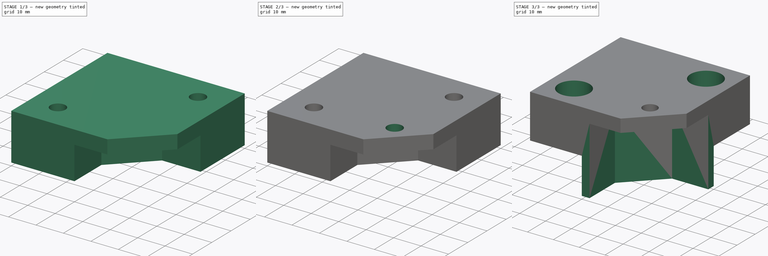
[diagram: build sequence overview — one tinted view per stage of 3, left to right]
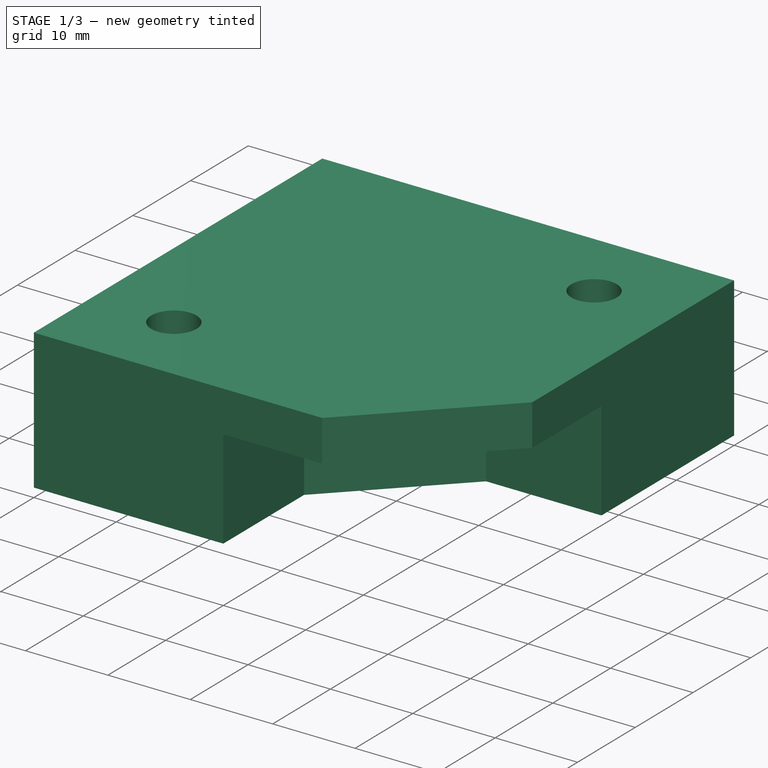
[diagram: stage 1 of 3 — iso view after this stage's code; geometry added in this stage tinted green]
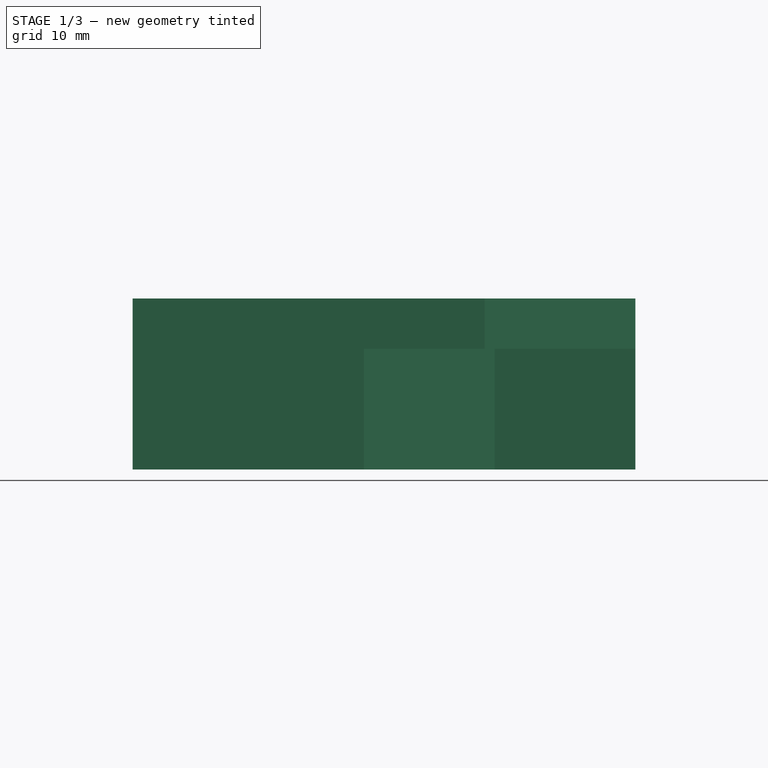
[diagram: stage 1 of 3 — front view after this stage's code; geometry added in this stage tinted green]
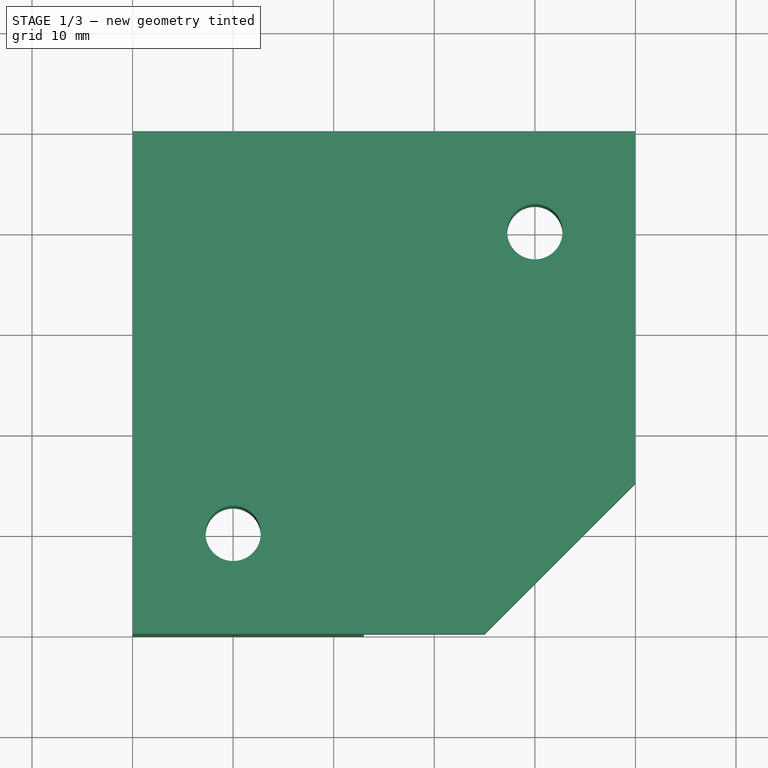
[diagram: stage 1 of 3 — top view after this stage's code; geometry added in this stage tinted green]
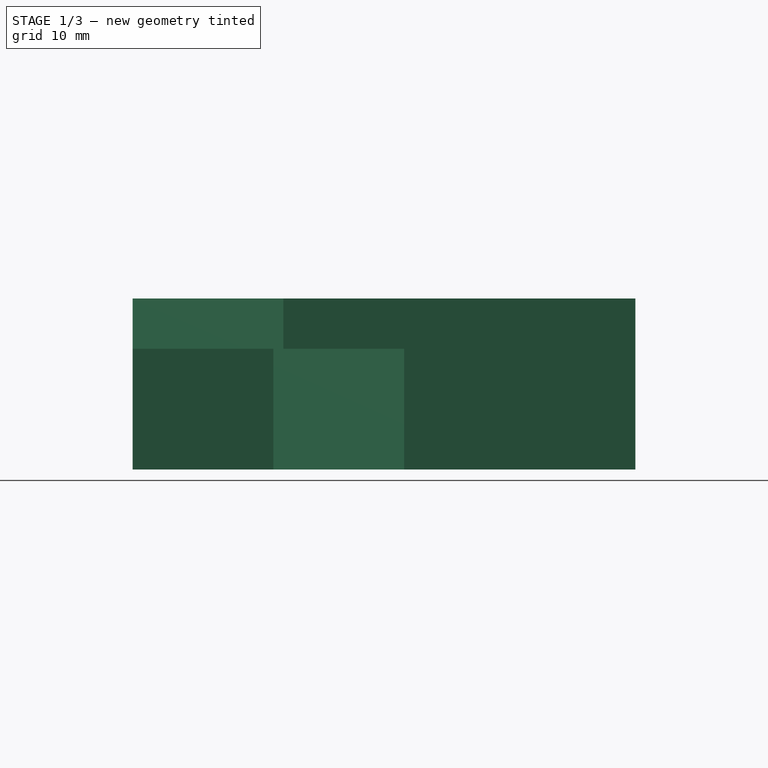
[diagram: stage 1 of 3 — right view after this stage's code; geometry added in this stage tinted green]
FCSTD DOCUMENT  (FreeCAD 0.20R27078 (Git))
Label: corner idler bracket top
License: All rights reserved
LicenseURL: http://en.wikipedia.org/wiki/All_rights_reserved
objects: Sketcher::SketchObject×6, PartDesign::Pad×3, PartDesign::Pocket×3, PartDesign::Body×1
note: 19 computed .brp shape members not serialized (recipe doc carries the construction recipe); baked Part::Feature solids carry a one-line shape summary decoded from their .brp

FEATURE [Sketcher::SketchObject] Sketch001
  FullyConstrained = false
  MapMode = 5
  Placement = pos=(0,0,6) rot=(0,0,1;0rad)
  sketch-geometry (13):
    g0: LineSegment StartX=15 StartY=-30 StartZ=0 EndX=-20 EndY=-30 EndZ=0
    g1: LineSegment StartX=-20 StartY=-30 StartZ=0 EndX=-20 EndY=20 EndZ=0
    g2: LineSegment StartX=-20 StartY=20 StartZ=0 EndX=30 EndY=20 EndZ=0
    g3: LineSegment StartX=30 StartY=20 StartZ=0 EndX=30 EndY=-15 EndZ=0
    g4: LineSegment StartX=15 StartY=-30 StartZ=0 EndX=30 EndY=-15 EndZ=0
    g5: Circle CenterX=-10 CenterY=-20 CenterZ=0 NormalX=0 NormalY=0 NormalZ=1 AngleXU=0 Radius=2.75
    g6: Circle CenterX=20 CenterY=10 CenterZ=0 NormalX=0 NormalY=0 NormalZ=1 AngleXU=0 Radius=2.75
    g7: LineSegment StartX=-10 StartY=-20 StartZ=0 EndX=0 EndY=-20 EndZ=0
    g8: LineSegment StartX=-10 StartY=-20 StartZ=0 EndX=-10 EndY=-30 EndZ=0
    g9: LineSegment StartX=20 StartY=10 StartZ=0 EndX=20 EndY=0 EndZ=0
    g10: LineSegment StartX=20 StartY=10 StartZ=0 EndX=30 EndY=10 EndZ=0
    g11: LineSegment StartX=-10 StartY=-20 StartZ=0 EndX=-20 EndY=-20 EndZ=0
    g12: LineSegment StartX=20 StartY=10 StartZ=0 EndX=20 EndY=20 EndZ=0
  constraints (38):
    c: Horizontal(g0)
    c: Coincident(g1,g0)
    c: Vertical(g1)
    c: Horizontal(g2)
    c: Coincident(g3,g2)
    c: Vertical(g3)
    c: Coincident(g4,g0)
    c: Coincident(g4,g3)
    c: Diameter(g6) = 5.5
    c: DistanceX(g-1,g0) = 15
    c: DistanceY(g0,g-1) = 30
    c: Equal(g3,g0)
    c: Coincident(g7,g5)
    c: PointOnObject(g7,g-2)
    c: Horizontal(g7)
    c: DistanceX(g7,g7) = 10
    c: Coincident(g8,g5)
    c: PointOnObject(g8,g0)
    c: Vertical(g8)
    c: Equal(g8,g7)
    c: Coincident(g9,g6)
    c: PointOnObject(g9,g-1)
    c: Vertical(g9)
    c: Equal(g7,g9)
    c: Coincident(g10,g6)
    c: PointOnObject(g10,g3)
    c: Horizontal(g10)
    c: Equal(g7,g10)
    c: Coincident(g11,g5)
    c: PointOnObject(g11,g1)
    c: Horizontal(g11)
    c: Equal(g11,g7)
    c: Coincident(g12,g6)
    c: PointOnObject(g12,g2)
    c: Vertical(g12)
    c: Equal(g12,g10)
    c: Coincident(g1,g2)
    c: Equal(g1,g2)
FEATURE [PartDesign::Pad] Pad001
  Direction = (0,0,1)
  Length = 17
  Length2 = 100
  Placement = pos=(0,0,6) rot=(0,0,1;0rad)
  Profile = -> Sketch001
  ReferenceAxis = -> Sketch001 [N_Axis]
  Refine = true
  Type = 0
FEATURE [Sketcher::SketchObject] Sketch
  ExternalGeometry = -> [Pad001]
  FullyConstrained = true
  MapMode = 5
  Placement = pos=(0,0,6) rot=(1,0,0;3.14159rad)
  Support = -> [Pad001]
  sketch-geometry (6):
    g0: LineSegment StartX=15 StartY=30 StartZ=0 EndX=3 EndY=30 EndZ=0
    g1: LineSegment StartX=15 StartY=30 StartZ=0 EndX=30 EndY=15 EndZ=0
    g2: LineSegment StartX=30 StartY=15 StartZ=0 EndX=30 EndY=3 EndZ=0
    g3: LineSegment StartX=3 StartY=16 StartZ=0 EndX=16 EndY=3 EndZ=0
    g4: LineSegment StartX=3 StartY=16 StartZ=0 EndX=3 EndY=30 EndZ=0
    g5: LineSegment StartX=16 StartY=3 StartZ=0 EndX=30 EndY=3 EndZ=0
  constraints (16):
    c: Coincident(g0,g-3)
    c: Horizontal(g0)
    c: Coincident(g1,g0)
    c: Coincident(g1,g-3)
    c: Coincident(g2,g1)
    c: Vertical(g2)
    c: Parallel(g3,g1)
    c: Coincident(g4,g3)
    c: Coincident(g4,g0)
    c: Coincident(g5,g3)
    c: Coincident(g5,g2)
    c: DistanceX(g5,g5) = 14
    c: Vertical(g4)
    c: Equal(g5,g4)
    c: Horizontal(g5)
    c: DistanceY(g-1,g2) = 3
FEATURE [PartDesign::Pocket] Pocket
  BaseFeature = -> Pad001
  Direction = (0,0,1)
  Length = 12
  Length2 = 100
  Placement = pos=(0,0,6) rot=(0,0,1;0rad)
  Profile = -> Sketch
  ReferenceAxis = -> Sketch [N_Axis]
  Refine = true
  Type = 0
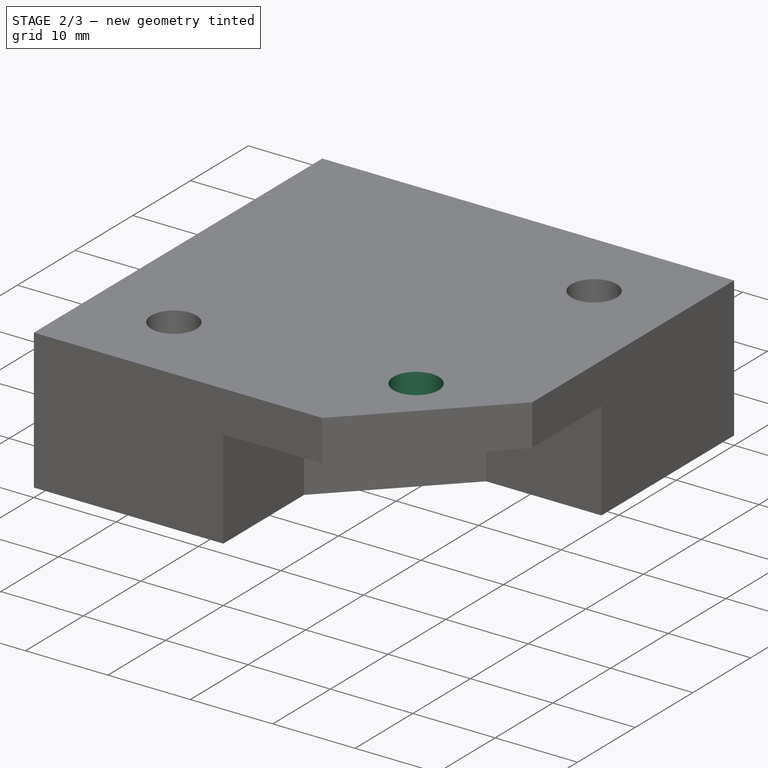
[diagram: stage 2 of 3 — iso view after this stage's code; geometry added in this stage tinted green]
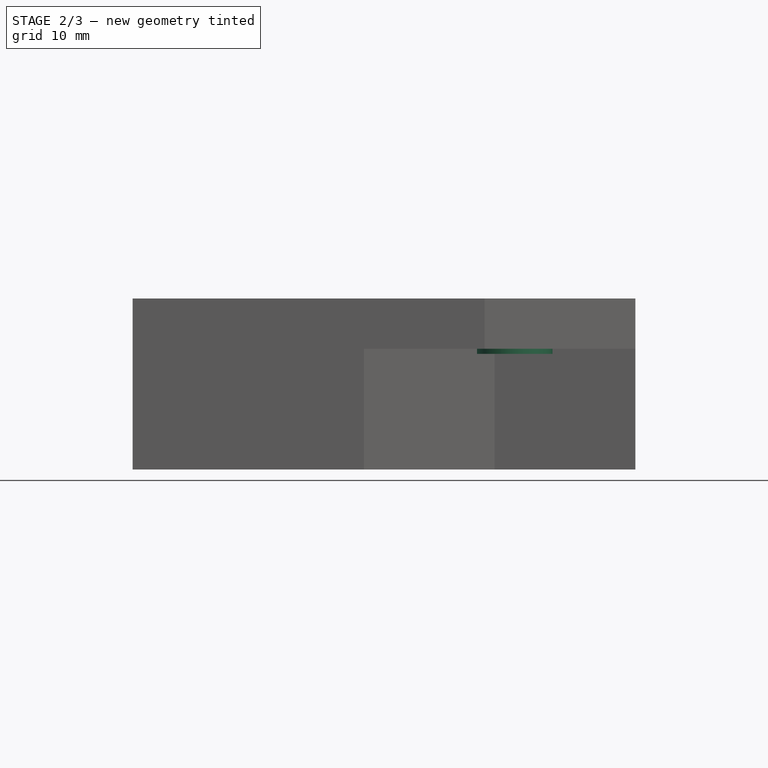
[diagram: stage 2 of 3 — front view after this stage's code; geometry added in this stage tinted green]
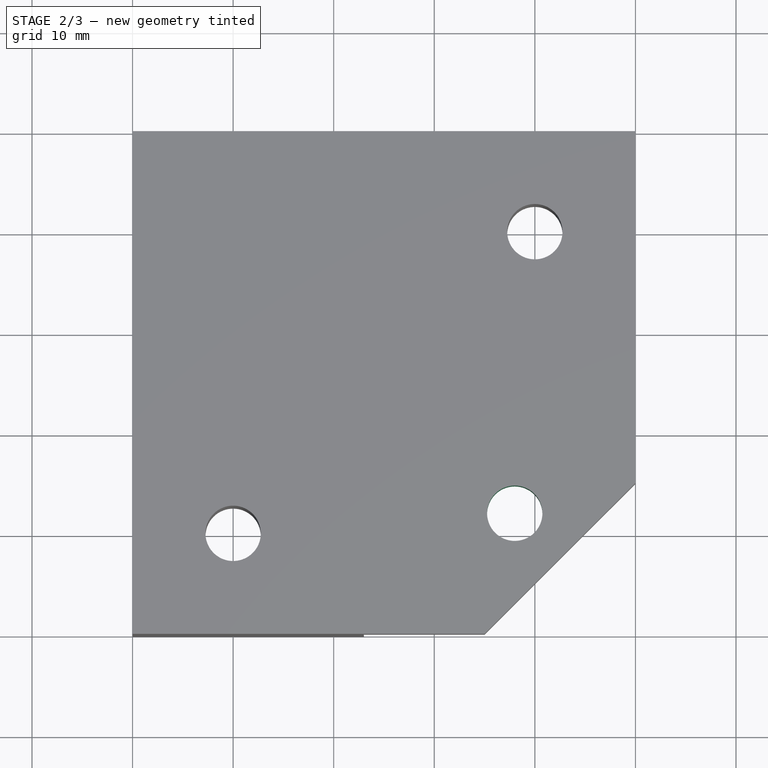
[diagram: stage 2 of 3 — top view after this stage's code; geometry added in this stage tinted green]
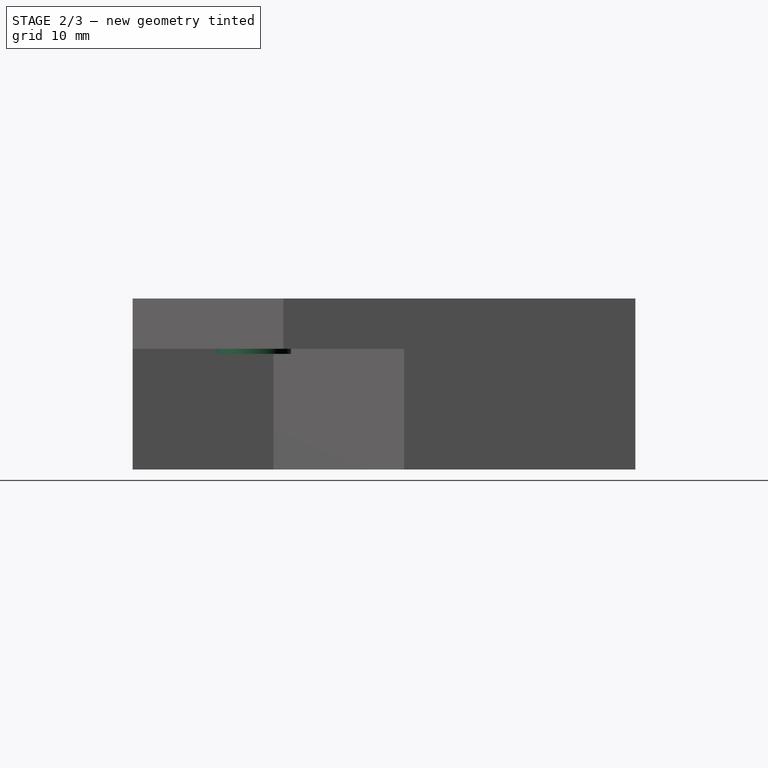
[diagram: stage 2 of 3 — right view after this stage's code; geometry added in this stage tinted green]
FEATURE [Sketcher::SketchObject] Sketch002
  FullyConstrained = true
  MapMode = 5
  Placement = pos=(0,0,18) rot=(1,0,0;3.14159rad)
  Support = -> [Pocket]
  sketch-geometry (1):
    g0: Circle CenterX=18 CenterY=18 CenterZ=0 NormalX=0 NormalY=0 NormalZ=1 AngleXU=0 Radius=2.75
  constraints (3):
    c: Diameter(g0) = 5.5
    c: DistanceY(g-1,g0) = 18
    c: DistanceX(g-1,g0) = 18
FEATURE [PartDesign::Pocket] Pocket001
  BaseFeature = -> Pocket
  Direction = (0,0,1)
  Length = 5
  Length2 = 100
  Placement = pos=(0,0,6) rot=(0,0,1;0rad)
  Profile = -> Sketch002
  ReferenceAxis = -> Sketch002 [N_Axis]
  Refine = true
  Type = 1
FEATURE [Sketcher::SketchObject] Sketch004
  ExternalGeometry = -> [Pocket001]
  FullyConstrained = true
  MapMode = 5
  Placement = pos=(0,0,18) rot=(1,0,0;3.14159rad)
  Support = -> [Pocket001]
  sketch-geometry (2):
    g0: Circle CenterX=18 CenterY=18 CenterZ=0 NormalX=0 NormalY=0 NormalZ=1 AngleXU=0 Radius=3.75
    g1: Circle CenterX=18 CenterY=18 CenterZ=0 NormalX=0 NormalY=0 NormalZ=1 AngleXU=0 Radius=2.75
  constraints (4):
    c: Coincident(g1,g0)
    c: Diameter(g0) = 7.5
    c: Coincident(g0,g-3)
    c: Equal(g1,g-3)
FEATURE [PartDesign::Pad] Pad
  BaseFeature = -> Pocket001
  Direction = (0,0,-1)
  Length = 0.5
  Length2 = 100
  Placement = pos=(0,0,6) rot=(0,0,1;0rad)
  Profile = -> Sketch004
  ReferenceAxis = -> Sketch004 [N_Axis]
  Refine = true
  Type = 0
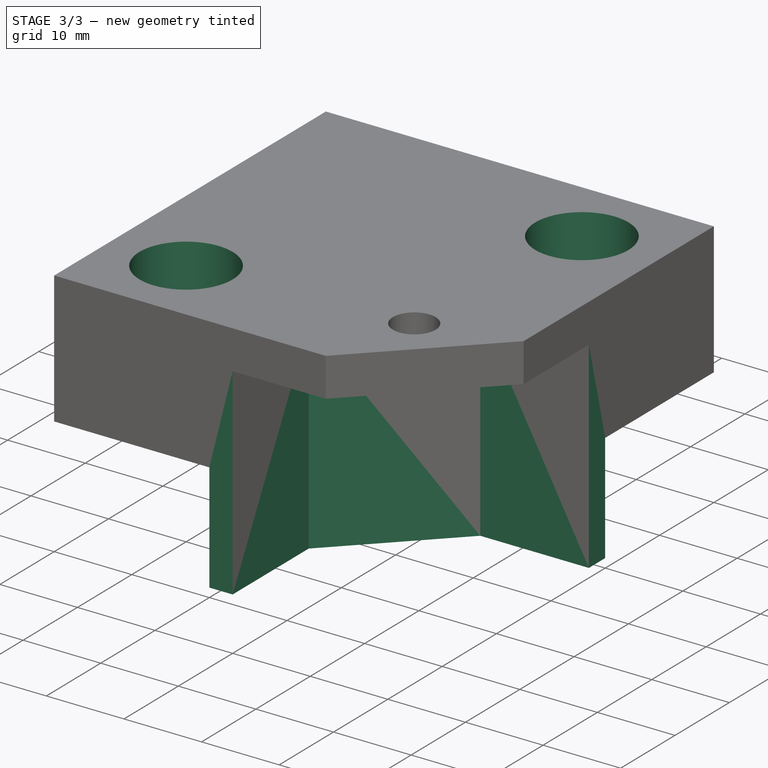
[diagram: stage 3 of 3 — iso view after this stage's code; geometry added in this stage tinted green]
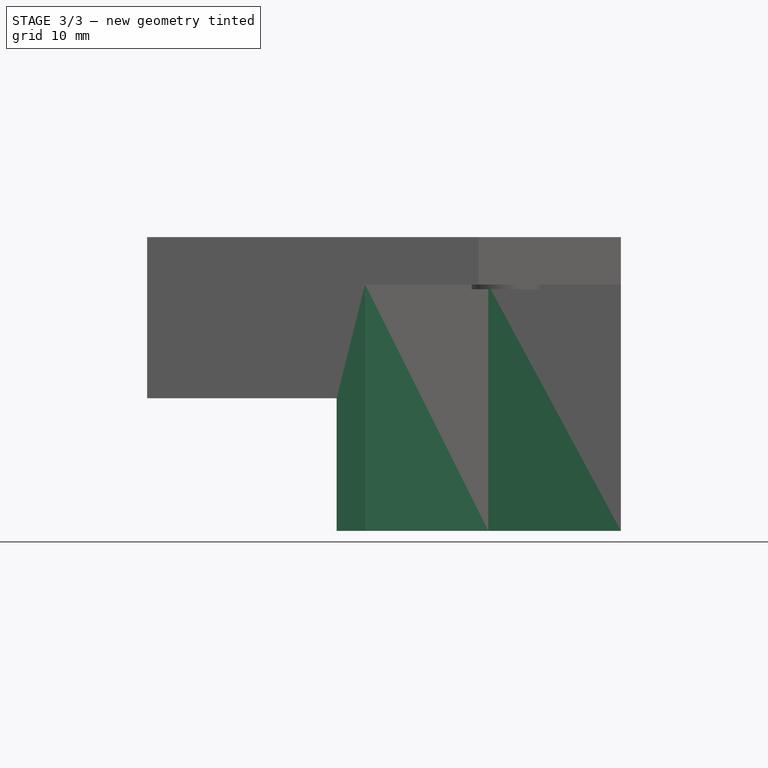
[diagram: stage 3 of 3 — front view after this stage's code; geometry added in this stage tinted green]
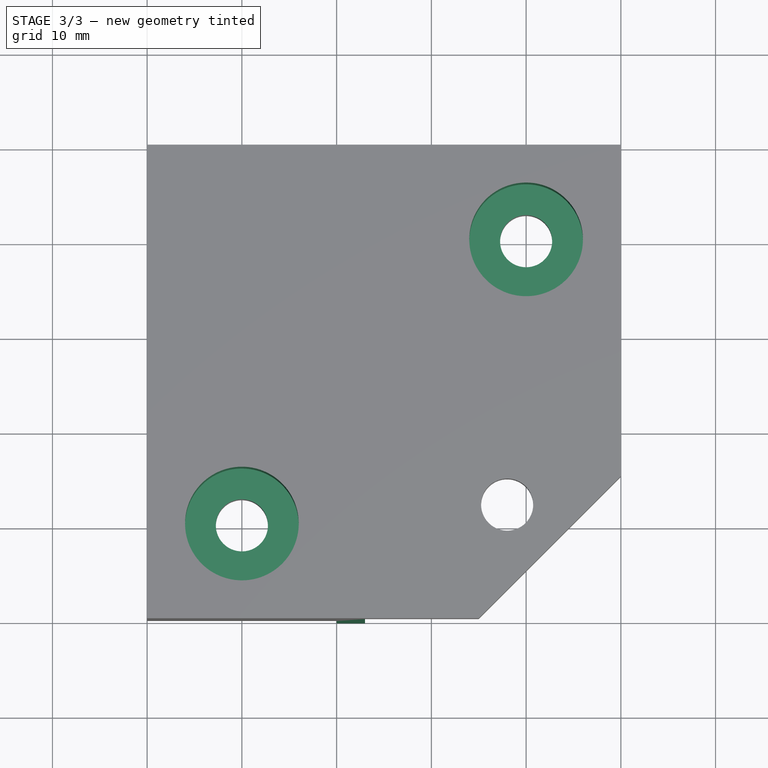
[diagram: stage 3 of 3 — top view after this stage's code; geometry added in this stage tinted green]
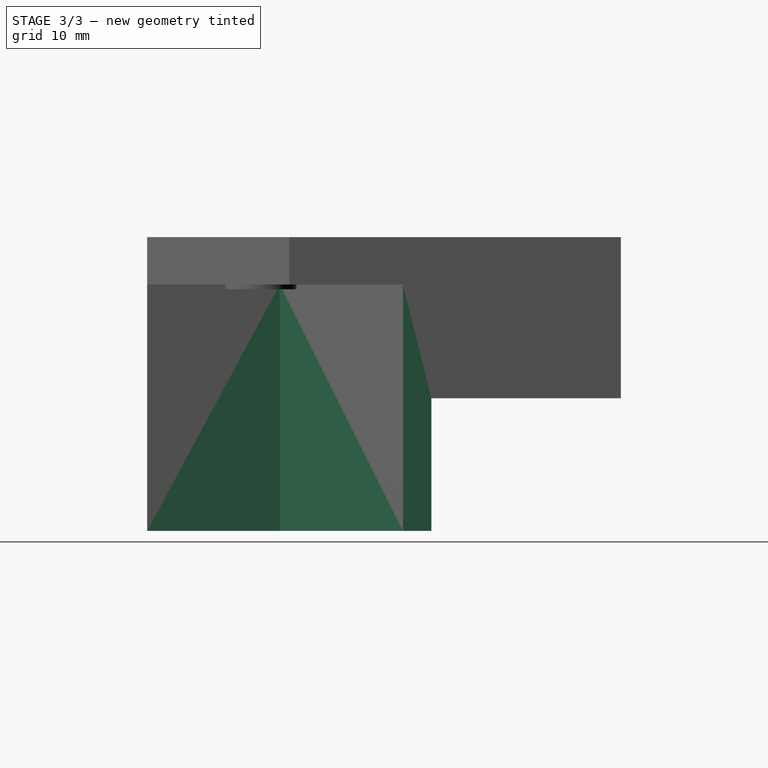
[diagram: stage 3 of 3 — right view after this stage's code; geometry added in this stage tinted green]
FEATURE [Sketcher::SketchObject] Sketch005
  ExternalGeometry = -> [Pad]
  FullyConstrained = true
  MapMode = 5
  Placement = pos=(0,0,6) rot=(1,0,0;3.14159rad)
  Support = -> [Pad]
  sketch-geometry (7):
    g0: LineSegment StartX=3 StartY=16 StartZ=0 EndX=16 EndY=3 EndZ=0
    g1: LineSegment StartX=3 StartY=16 StartZ=0 EndX=3 EndY=30 EndZ=0
    g2: LineSegment StartX=3 StartY=30 StartZ=0 EndX=0 EndY=30 EndZ=0
    g3: LineSegment StartX=0 StartY=30 StartZ=0 EndX=0 EndY=0 EndZ=0
    g4: LineSegment StartX=0 StartY=0 StartZ=0 EndX=30 EndY=0 EndZ=0
    g5: LineSegment StartX=30 StartY=3 StartZ=0 EndX=30 EndY=0 EndZ=0
    g6: LineSegment StartX=30 StartY=3 StartZ=0 EndX=16 EndY=3 EndZ=0
  constraints (16):
    c: Coincident(g0,g-3)
    c: Coincident(g0,g-3)
    c: Coincident(g1,g0)
    c: Coincident(g1,g-4)
    c: Coincident(g2,g1)
    c: PointOnObject(g2,g-2)
    c: Horizontal(g2)
    c: Coincident(g3,g2)
    c: Coincident(g3,g-1)
    c: Coincident(g4,g3)
    c: PointOnObject(g4,g-1)
    c: Coincident(g5,g-5)
    c: Coincident(g5,g4)
    c: Vertical(g5)
    c: Coincident(g6,g5)
    c: Coincident(g6,g0)
FEATURE [PartDesign::Pad] Pad002
  BaseFeature = -> Pad
  Direction = (0,0,-1)
  Length = 14
  Length2 = 100
  Placement = pos=(0,0,6) rot=(0,0,1;0rad)
  Profile = -> Sketch005
  ReferenceAxis = -> Sketch005 [N_Axis]
  Refine = true
  Type = 0
FEATURE [Sketcher::SketchObject] Sketch006
  ExternalGeometry = -> [Pad002]
  FullyConstrained = true
  MapMode = 5
  Placement = pos=(0,0,23) rot=(0,0,1;0rad)
  Support = -> [Pad002]
  sketch-geometry (2):
    g0: Circle CenterX=20 CenterY=10 CenterZ=0 NormalX=0 NormalY=0 NormalZ=1 AngleXU=0 Radius=6
    g1: Circle CenterX=-10 CenterY=-20 CenterZ=0 NormalX=0 NormalY=0 NormalZ=1 AngleXU=0 Radius=6
  constraints (4):
    c: Coincident(g0,g-3)
    c: Diameter(g0) = 12
    c: Equal(g0,g1)
    c: Coincident(g-4,g1)
FEATURE [PartDesign::Pocket] Pocket002
  BaseFeature = -> Pad002
  Direction = (0,0,-1)
  Length = 0
  Length2 = 100
  Offset = 6
  Placement = pos=(0,0,6) rot=(0,0,1;0rad)
  Profile = -> Sketch006
  ReferenceAxis = -> Sketch006 [N_Axis]
  Refine = true
  Reversed = true
  Type = 3
  UpToFace = -> Pad002 [Face3]
FEATURE [PartDesign::Body] Body
  Group = -> [Sketch001,Sketch002,Sketch004,Pad001,Sketch,Pocket,Pocket001,Pad,Sketch005,Pad002,Sketch006,Pocket002]
  Origin = -> Origin
  Tip = -> Pocket002
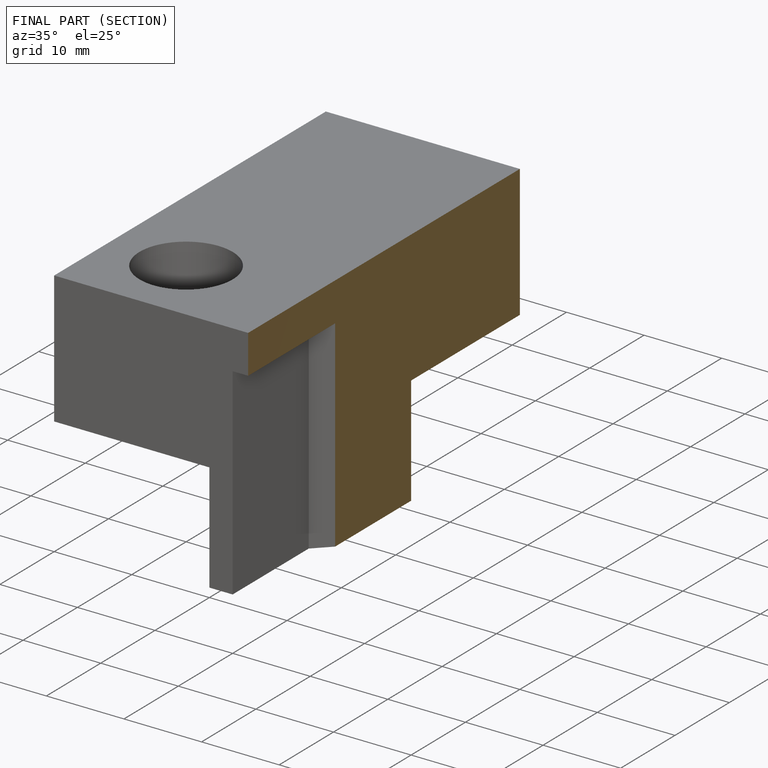
[diagram: finished part — half-section view (interior)]
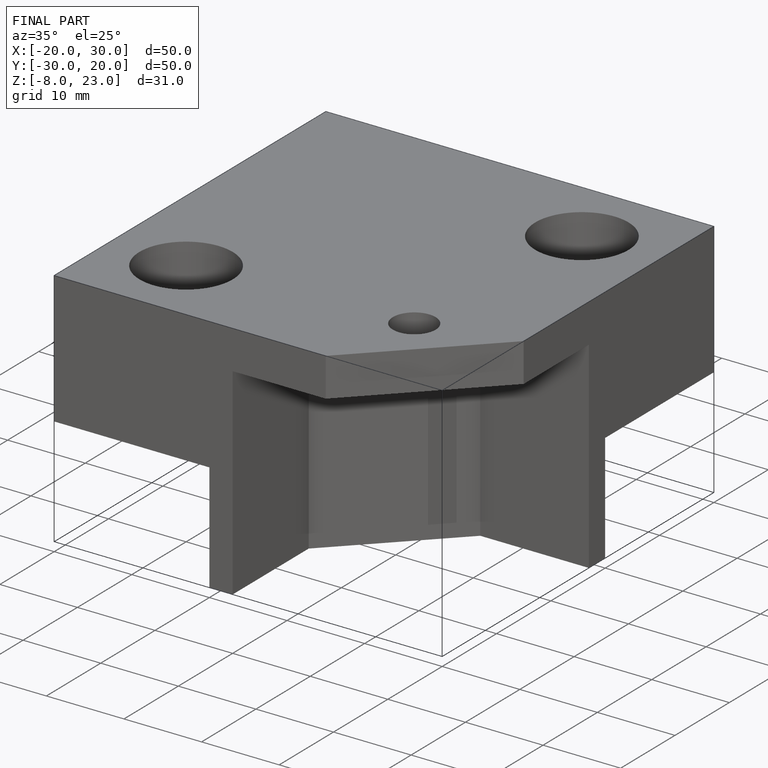
[diagram: finished part — iso view with bounding-box wireframe]
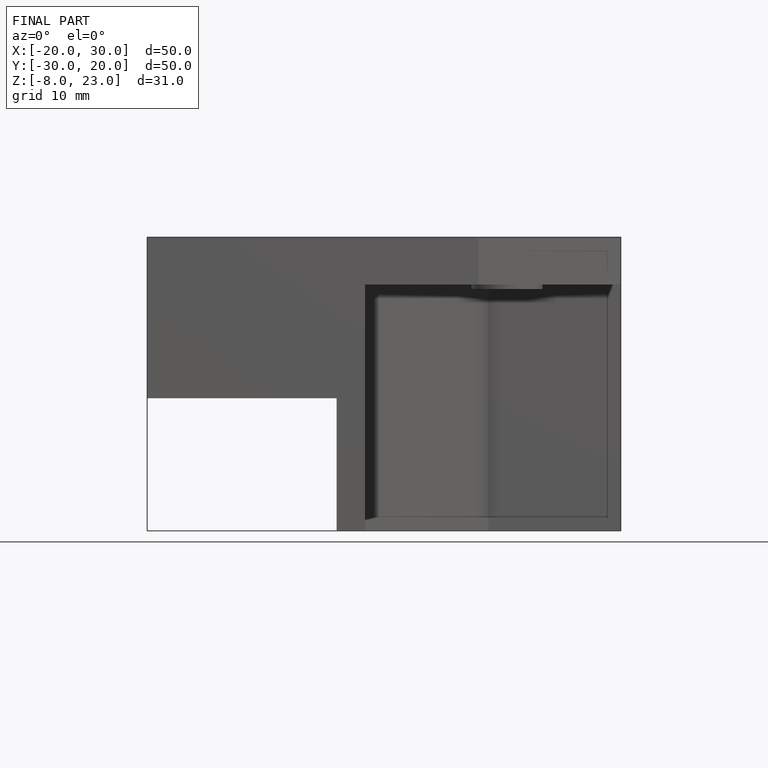
[diagram: finished part — front view with bounding-box wireframe]
